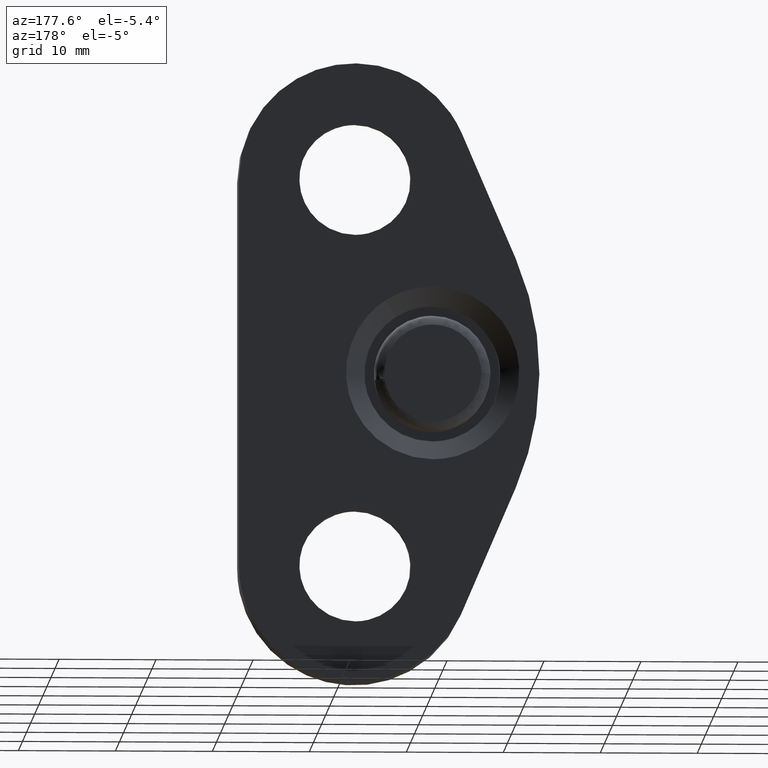
[diagram: clean part render]
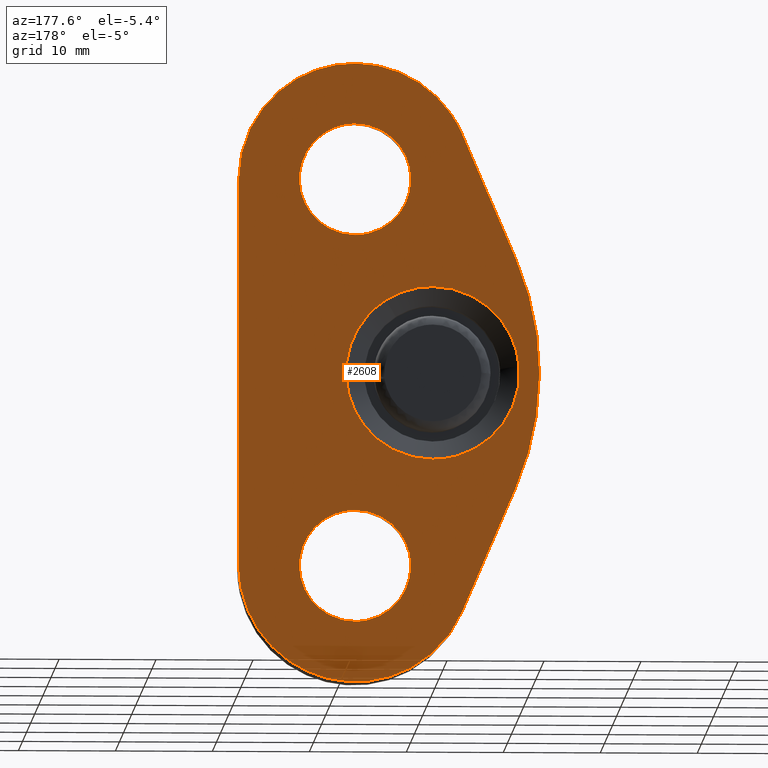
[diagram: same view with one face highlighted and labeled with its STEP entity id]
A machine part, auxiliary view. The second image highlights one B-rep face of the part: STEP entity #2608.
In plain terms, the highlighted face is a freeform B-spline surface patch.
Its self-contained STEP definition (entity closure, byte-faithful):
#1150=CARTESIAN_POINT('',(4.807171761764151,25.000000000002370,7.534874664572694));
#1151=VERTEX_POINT('',#1150);
#1157=CARTESIAN_POINT('',(0.0,25.0,-8.937742251701371));
#1158=VERTEX_POINT('',#1157);
#1159=CARTESIAN_POINT('',(0.0,25.0,-8.937742251701371));
#1160=CARTESIAN_POINT('',(8.937742251701371,25.0,-8.937742251701371));
#1161=CARTESIAN_POINT('',(8.937742251701371,25.0,-2.965939E-016));
#1162=CARTESIAN_POINT('',(8.937742251701371,25.0,4.899613601374476));
#1163=CARTESIAN_POINT('',(4.807171761764151,25.000000000002370,7.534874664572694));
#1171=(BOUNDED_CURVE()B_SPLINE_CURVE(2,(#1159,#1160,#1161,#1162,#1163),.UNSPECIFIED.,.F.,.U.)B_SPLINE_CURVE_WITH_KNOTS((3,2,3),(0.0,0.250000000000000,0.407950112624868),.UNSPECIFIED.)CURVE()GEOMETRIC_REPRESENTATION_ITEM()RATIONAL_B_SPLINE_CURVE((1.0,0.707106781186548,1.0,0.814949932405421,0.863729296953267))REPRESENTATION_ITEM(''));
#1172=EDGE_CURVE('',#1158,#1151,#1171,.T.);
#1174=CARTESIAN_POINT('',(-8.910190175178501,25.000000000023039,0.701247175196655));
#1175=VERTEX_POINT('',#1174);
#1176=CARTESIAN_POINT('',(-8.910190175178501,25.000000000023046,0.701247175196655));
#1177=CARTESIAN_POINT('',(-8.937742251701373,24.999999999999996,0.351164849754046));
#1178=CARTESIAN_POINT('',(-8.937742251701371,25.0,-2.965939E-016));
#1179=CARTESIAN_POINT('',(-8.937742251701371,25.0,-8.937742251701371));
#1180=CARTESIAN_POINT('',(0.0,25.0,-8.937742251701371));
#1188=(BOUNDED_CURVE()B_SPLINE_CURVE(2,(#1176,#1177,#1178,#1179,#1180),.UNSPECIFIED.,.F.,.U.)B_SPLINE_CURVE_WITH_KNOTS((3,2,3),(0.736331300622130,0.750000000000000,1.0),.UNSPECIFIED.)CURVE()GEOMETRIC_REPRESENTATION_ITEM()RATIONAL_B_SPLINE_CURVE((0.969723356149616,0.983986122568889,1.0,0.707106781186548,1.0))REPRESENTATION_ITEM(''));
#1189=EDGE_CURVE('',#1175,#1158,#1188,.T.);
#1293=CARTESIAN_POINT('',(0.0,25.0,8.937742251701371));
#1294=VERTEX_POINT('',#1293);
#1295=CARTESIAN_POINT('',(0.0,25.0,8.937742251701371));
#1296=CARTESIAN_POINT('',(-8.261963953850328,25.000000000000007,8.937742251701373));
#1297=CARTESIAN_POINT('',(-8.910190175178501,25.000000000023043,0.701247175196655));
#1305=(BOUNDED_CURVE()B_SPLINE_CURVE(2,(#1295,#1296,#1297),.UNSPECIFIED.,.F.,.U.)B_SPLINE_CURVE_WITH_KNOTS((3,3),(0.500000000000000,0.736331300622130),.UNSPECIFIED.)CURVE()GEOMETRIC_REPRESENTATION_ITEM()RATIONAL_B_SPLINE_CURVE((1.0,0.723120658617659,0.969723356149617))REPRESENTATION_ITEM(''));
#1306=EDGE_CURVE('',#1294,#1175,#1305,.T.);
#1308=CARTESIAN_POINT('',(4.807171761764151,25.000000000002370,7.534874664572694));
#1309=CARTESIAN_POINT('',(2.608283940880931,25.0,8.937742251701369));
#1310=CARTESIAN_POINT('',(0.0,25.0,8.937742251701371));
#1318=(BOUNDED_CURVE()B_SPLINE_CURVE(2,(#1308,#1309,#1310),.UNSPECIFIED.,.F.,.U.)B_SPLINE_CURVE_WITH_KNOTS((3,3),(0.407950112624868,0.500000000000000),.UNSPECIFIED.)CURVE()GEOMETRIC_REPRESENTATION_ITEM()RATIONAL_B_SPLINE_CURVE((0.863729296953267,0.892156848781127,1.0))REPRESENTATION_ITEM(''));
#1319=EDGE_CURVE('',#1151,#1294,#1318,.T.);
#1871=CARTESIAN_POINT('',(2.260724909077887,25.0,-19.648970897613879));
#1872=VERTEX_POINT('',#1871);
#1878=CARTESIAN_POINT('',(8.0,25.0,-14.249999999999909));
#1879=VERTEX_POINT('',#1878);
#1880=CARTESIAN_POINT('',(8.0,25.0,-14.249999999999909));
#1881=CARTESIAN_POINT('',(2.590940115406788,24.999999999999996,-14.249999999999906));
#1882=CARTESIAN_POINT('',(2.260724909077888,25.000000000000004,-19.648970897613879));
#1890=(BOUNDED_CURVE()B_SPLINE_CURVE(2,(#1880,#1881,#1882),.UNSPECIFIED.,.F.,.U.)B_SPLINE_CURVE_WITH_KNOTS((3,3),(0.500000000000000,0.739332962238319),.UNSPECIFIED.)CURVE()GEOMETRIC_REPRESENTATION_ITEM()RATIONAL_B_SPLINE_CURVE((1.0,0.719603993287441,0.976072041665380))REPRESENTATION_ITEM(''));
#1891=EDGE_CURVE('',#1879,#1872,#1890,.T.);
#1893=CARTESIAN_POINT('',(10.021803352776240,25.0,-14.617174422043410));
#1894=VERTEX_POINT('',#1893);
#1895=CARTESIAN_POINT('',(10.021803352776242,25.000000000000004,-14.617174422043405));
#1896=CARTESIAN_POINT('',(9.044242469911115,25.000000000000004,-14.249999999999917));
#1897=CARTESIAN_POINT('',(8.0,25.0,-14.249999999999909));
#1905=(BOUNDED_CURVE()B_SPLINE_CURVE(2,(#1895,#1896,#1897),.UNSPECIFIED.,.F.,.U.)B_SPLINE_CURVE_WITH_KNOTS((3,3),(0.440284170897462,0.500000000000000),.UNSPECIFIED.)CURVE()GEOMETRIC_REPRESENTATION_ITEM()RATIONAL_B_SPLINE_CURVE((0.893499554633994,0.930038554400174,1.0))REPRESENTATION_ITEM(''));
#1906=EDGE_CURVE('',#1894,#1879,#1905,.T.);
#1956=CARTESIAN_POINT('',(8.0,25.0,-25.750000000000089));
#1957=VERTEX_POINT('',#1956);
#1958=CARTESIAN_POINT('',(8.0,25.0,-25.750000000000089));
#1959=CARTESIAN_POINT('',(13.750000000000091,25.0,-25.750000000000085));
#1960=CARTESIAN_POINT('',(13.750000000000091,25.0,-20.0));
#1961=CARTESIAN_POINT('',(13.750000000000091,25.000000000000007,-16.017494824796032));
#1962=CARTESIAN_POINT('',(10.021803352776240,24.999999999999996,-14.617174422043409));
#1970=(BOUNDED_CURVE()B_SPLINE_CURVE(2,(#1958,#1959,#1960,#1961,#1962),.UNSPECIFIED.,.F.,.U.)B_SPLINE_CURVE_WITH_KNOTS((3,2,3),(0.0,0.250000000000000,0.440284170897462),.UNSPECIFIED.)CURVE()GEOMETRIC_REPRESENTATION_ITEM()RATIONAL_B_SPLINE_CURVE((1.0,0.707106781186548,1.0,0.777068226786374,0.893499554633994))REPRESENTATION_ITEM(''));
#1971=EDGE_CURVE('',#1957,#1894,#1970,.T.);
#1973=CARTESIAN_POINT('',(2.260724909077887,24.999999999999996,-19.648970897613886));
#1974=CARTESIAN_POINT('',(2.249999999999910,24.999999999999996,-19.824321610972259));
#1975=CARTESIAN_POINT('',(2.249999999999910,25.0,-20.0));
#1976=CARTESIAN_POINT('',(2.249999999999911,25.0,-25.750000000000085));
#1977=CARTESIAN_POINT('',(8.0,25.0,-25.750000000000089));
#1985=(BOUNDED_CURVE()B_SPLINE_CURVE(2,(#1973,#1974,#1975,#1976,#1977),.UNSPECIFIED.,.F.,.U.)B_SPLINE_CURVE_WITH_KNOTS((3,2,3),(0.739332962238319,0.750000000000000,1.0),.UNSPECIFIED.)CURVE()GEOMETRIC_REPRESENTATION_ITEM()RATIONAL_B_SPLINE_CURVE((0.976072041665382,0.987502787899107,1.0,0.707106781186548,1.0))REPRESENTATION_ITEM(''));
#1986=EDGE_CURVE('',#1872,#1957,#1985,.T.);
#2199=CARTESIAN_POINT('',(2.260724909077887,25.0,20.351029102386111));
#2200=VERTEX_POINT('',#2199);
#2206=CARTESIAN_POINT('',(8.0,25.0,25.750000000000089));
#2207=VERTEX_POINT('',#2206);
#2208=CARTESIAN_POINT('',(8.0,25.0,25.750000000000089));
#2209=CARTESIAN_POINT('',(2.590940115406788,24.999999999999996,25.750000000000092));
#2210=CARTESIAN_POINT('',(2.260724909077888,25.000000000000004,20.351029102386118));
#2218=(BOUNDED_CURVE()B_SPLINE_CURVE(2,(#2208,#2209,#2210),.UNSPECIFIED.,.F.,.U.)B_SPLINE_CURVE_WITH_KNOTS((3,3),(0.500000000000000,0.739332962238319),.UNSPECIFIED.)CURVE()GEOMETRIC_REPRESENTATION_ITEM()RATIONAL_B_SPLINE_CURVE((1.0,0.719603993287441,0.976072041665380))REPRESENTATION_ITEM(''));
#2219=EDGE_CURVE('',#2207,#2200,#2218,.T.);
#2221=CARTESIAN_POINT('',(10.021803352776240,25.0,25.382825577956599));
#2222=VERTEX_POINT('',#2221);
#2223=CARTESIAN_POINT('',(10.021803352776242,25.000000000000004,25.382825577956599));
#2224=CARTESIAN_POINT('',(9.044242469911112,25.0,25.750000000000096));
#2225=CARTESIAN_POINT('',(8.0,25.0,25.750000000000089));
#2233=(BOUNDED_CURVE()B_SPLINE_CURVE(2,(#2223,#2224,#2225),.UNSPECIFIED.,.F.,.U.)B_SPLINE_CURVE_WITH_KNOTS((3,3),(0.440284170897462,0.500000000000000),.UNSPECIFIED.)CURVE()GEOMETRIC_REPRESENTATION_ITEM()RATIONAL_B_SPLINE_CURVE((0.893499554633994,0.930038554400174,1.0))REPRESENTATION_ITEM(''));
#2234=EDGE_CURVE('',#2222,#2207,#2233,.T.);
#2284=CARTESIAN_POINT('',(8.0,25.0,14.249999999999909));
#2285=VERTEX_POINT('',#2284);
#2286=CARTESIAN_POINT('',(8.0,25.0,14.249999999999909));
#2287=CARTESIAN_POINT('',(13.750000000000091,25.0,14.249999999999911));
#2288=CARTESIAN_POINT('',(13.750000000000091,25.0,20.0));
#2289=CARTESIAN_POINT('',(13.750000000000091,25.000000000000007,23.982505175203983));
#2290=CARTESIAN_POINT('',(10.021803352776240,24.999999999999996,25.382825577956591));
#2298=(BOUNDED_CURVE()B_SPLINE_CURVE(2,(#2286,#2287,#2288,#2289,#2290),.UNSPECIFIED.,.F.,.U.)B_SPLINE_CURVE_WITH_KNOTS((3,2,3),(0.0,0.250000000000000,0.440284170897462),.UNSPECIFIED.)CURVE()GEOMETRIC_REPRESENTATION_ITEM()RATIONAL_B_SPLINE_CURVE((1.0,0.707106781186548,1.0,0.777068226786374,0.893499554633994))REPRESENTATION_ITEM(''));
#2299=EDGE_CURVE('',#2285,#2222,#2298,.T.);
#2301=CARTESIAN_POINT('',(2.260724909077887,24.999999999999996,20.351029102386118));
#2302=CARTESIAN_POINT('',(2.249999999999910,24.999999999999996,20.175678389027741));
#2303=CARTESIAN_POINT('',(2.249999999999910,25.0,20.0));
#2304=CARTESIAN_POINT('',(2.249999999999911,25.0,14.249999999999911));
#2305=CARTESIAN_POINT('',(8.0,25.0,14.249999999999909));
#2313=(BOUNDED_CURVE()B_SPLINE_CURVE(2,(#2301,#2302,#2303,#2304,#2305),.UNSPECIFIED.,.F.,.U.)B_SPLINE_CURVE_WITH_KNOTS((3,2,3),(0.739332962238319,0.750000000000000,1.0),.UNSPECIFIED.)CURVE()GEOMETRIC_REPRESENTATION_ITEM()RATIONAL_B_SPLINE_CURVE((0.976072041665382,0.987502787899107,1.0,0.707106781186548,1.0))REPRESENTATION_ITEM(''));
#2314=EDGE_CURVE('',#2200,#2285,#2313,.T.);
#2513=CARTESIAN_POINT('',(-12.548449897382559,25.0,35.194043408901940));
#2514=CARTESIAN_POINT('',(21.548450769377311,25.0,35.194043408901940));
#2515=CARTESIAN_POINT('',(-12.548449897382559,25.0,-35.194040313633678));
#2516=CARTESIAN_POINT('',(21.548450769377311,25.0,-35.194040313633678));
#2517=B_SPLINE_SURFACE_WITH_KNOTS('',1,1,((#2513,#2515),(#2514,#2516)),.UNSPECIFIED.,.F.,.F.,.U.,(2,2),(2,2),(0.0,34.096900666759872),(0.0,70.388083722535612),.UNSPECIFIED.);
#2518=CARTESIAN_POINT('',(20.0,25.0,20.0));
#2519=VERTEX_POINT('',#2518);
#2520=CARTESIAN_POINT('',(-3.026028000000000,25.0,24.735684999999901));
#2521=VERTEX_POINT('',#2520);
#2522=CARTESIAN_POINT('',(19.999999999999979,25.0,20.0));
#2523=CARTESIAN_POINT('',(20.000000505787099,25.000000000000004,29.783165299123507));
#2524=CARTESIAN_POINT('',(10.417402214982440,25.0,31.753985754426889));
#2525=CARTESIAN_POINT('',(0.834803924177780,25.000000000000004,33.724806209730268));
#2526=CARTESIAN_POINT('',(-3.026028000000005,25.0,24.735684999999911));
#2534=(BOUNDED_CURVE()B_SPLINE_CURVE(2,(#2522,#2523,#2524,#2525,#2526),.UNSPECIFIED.,.F.,.U.)B_SPLINE_CURVE_WITH_KNOTS((3,2,3),(0.0,0.500000000000000,1.0),.UNSPECIFIED.)CURVE()GEOMETRIC_REPRESENTATION_ITEM()RATIONAL_B_SPLINE_CURVE((1.0,0.775064556647392,1.0,0.775064556647392,1.0))REPRESENTATION_ITEM(''));
#2535=EDGE_CURVE('',#2519,#2521,#2534,.T.);
#2536=ORIENTED_EDGE('',*,*,#2535,.F.);
#2537=CARTESIAN_POINT('',(20.0,25.0,-19.999999620397048));
#2538=VERTEX_POINT('',#2537);
#2539=CARTESIAN_POINT('',(20.0,25.0,-19.999999620397048));
#2540=CARTESIAN_POINT('',(20.0,25.0,20.0));
#2541=QUASI_UNIFORM_CURVE('',1,(#2539,#2540),.UNSPECIFIED.,.F.,.U.);
#2542=EDGE_CURVE('',#2538,#2519,#2541,.T.);
#2543=ORIENTED_EDGE('',*,*,#2542,.F.);
#2544=CARTESIAN_POINT('',(-3.026028000000000,25.0,-24.735684000000099));
#2545=VERTEX_POINT('',#2544);
#2546=CARTESIAN_POINT('',(-3.026027999999988,25.0,-24.735684000000091));
#2547=CARTESIAN_POINT('',(0.834803822286927,25.0,-33.724804972499285));
#2548=CARTESIAN_POINT('',(10.417401911143459,25.0,-31.753984816916571));
#2549=CARTESIAN_POINT('',(20.0,25.0,-29.783164661333853));
#2550=CARTESIAN_POINT('',(20.0,25.0,-19.999999620397048));
#2558=(BOUNDED_CURVE()B_SPLINE_CURVE(2,(#2546,#2547,#2548,#2549,#2550),.UNSPECIFIED.,.F.,.U.)B_SPLINE_CURVE_WITH_KNOTS((3,2,3),(0.0,0.500000000000000,1.0),.UNSPECIFIED.)CURVE()GEOMETRIC_REPRESENTATION_ITEM()RATIONAL_B_SPLINE_CURVE((1.0,0.775064564814428,1.0,0.775064564814428,1.0))REPRESENTATION_ITEM(''));
#2559=EDGE_CURVE('',#2545,#2538,#2558,.T.);
#2560=ORIENTED_EDGE('',*,*,#2559,.F.);
#2561=CARTESIAN_POINT('',(-8.565069783469122,25.0,-11.839211504146100));
#2562=VERTEX_POINT('',#2561);
#2563=CARTESIAN_POINT('',(-8.565069783469122,25.0,-11.839211504146100));
#2564=CARTESIAN_POINT('',(-3.026028000000000,25.0,-24.735684000000099));
#2565=QUASI_UNIFORM_CURVE('',1,(#2563,#2564),.UNSPECIFIED.,.F.,.U.);
#2566=EDGE_CURVE('',#2562,#2545,#2565,.T.);
#2567=ORIENTED_EDGE('',*,*,#2566,.F.);
#2568=CARTESIAN_POINT('',(-8.565070000000109,25.0,11.839212000000000));
#2569=VERTEX_POINT('',#2568);
#2570=CARTESIAN_POINT('',(-8.565070000000102,25.0,11.839211999999989));
#2571=CARTESIAN_POINT('',(-13.650017496232248,25.000000000000004,0.000000201426849));
#2572=CARTESIAN_POINT('',(-8.565069783469118,25.0,-11.839211504146110));
#2580=(BOUNDED_CURVE()B_SPLINE_CURVE(2,(#2570,#2571,#2572),.UNSPECIFIED.,.F.,.U.)CURVE()GEOMETRIC_REPRESENTATION_ITEM()QUASI_UNIFORM_CURVE()RATIONAL_B_SPLINE_CURVE((1.0,0.918835655169432,1.0))REPRESENTATION_ITEM(''));
#2581=EDGE_CURVE('',#2569,#2562,#2580,.T.);
#2582=ORIENTED_EDGE('',*,*,#2581,.F.);
#2583=CARTESIAN_POINT('',(-3.026028000000000,25.0,24.735684999999901));
#2584=CARTESIAN_POINT('',(-8.565070000000109,25.0,11.839212000000000));
#2585=QUASI_UNIFORM_CURVE('',1,(#2583,#2584),.UNSPECIFIED.,.F.,.U.);
#2586=EDGE_CURVE('',#2521,#2569,#2585,.T.);
#2587=ORIENTED_EDGE('',*,*,#2586,.F.);
#2588=EDGE_LOOP('',(#2536,#2543,#2560,#2567,#2582,#2587));
#2589=FACE_OUTER_BOUND('',#2588,.T.);
#2590=ORIENTED_EDGE('',*,*,#2219,.T.);
#2591=ORIENTED_EDGE('',*,*,#2314,.T.);
#2592=ORIENTED_EDGE('',*,*,#2299,.T.);
#2593=ORIENTED_EDGE('',*,*,#2234,.T.);
#2594=EDGE_LOOP('',(#2590,#2591,#2592,#2593));
#2595=FACE_BOUND('',#2594,.T.);
#2596=ORIENTED_EDGE('',*,*,#1891,.T.);
#2597=ORIENTED_EDGE('',*,*,#1986,.T.);
#2598=ORIENTED_EDGE('',*,*,#1971,.T.);
#2599=ORIENTED_EDGE('',*,*,#1906,.T.);
#2600=EDGE_LOOP('',(#2596,#2597,#2598,#2599));
#2601=FACE_BOUND('',#2600,.T.);
#2602=ORIENTED_EDGE('',*,*,#1306,.T.);
#2603=ORIENTED_EDGE('',*,*,#1189,.T.);
#2604=ORIENTED_EDGE('',*,*,#1172,.T.);
#2605=ORIENTED_EDGE('',*,*,#1319,.T.);
#2606=EDGE_LOOP('',(#2602,#2603,#2604,#2605));
#2607=FACE_BOUND('',#2606,.T.);
#2608=ADVANCED_FACE('',(#2589,#2595,#2601,#2607),#2517,.T.);